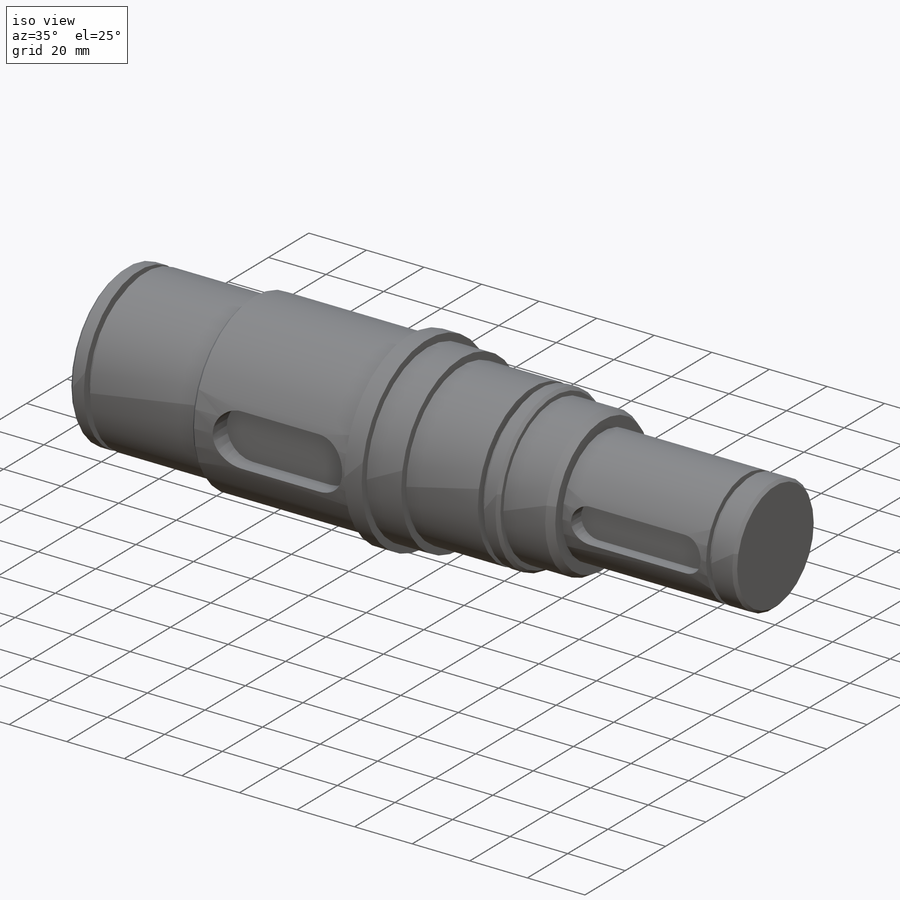
[diagram: iso view]
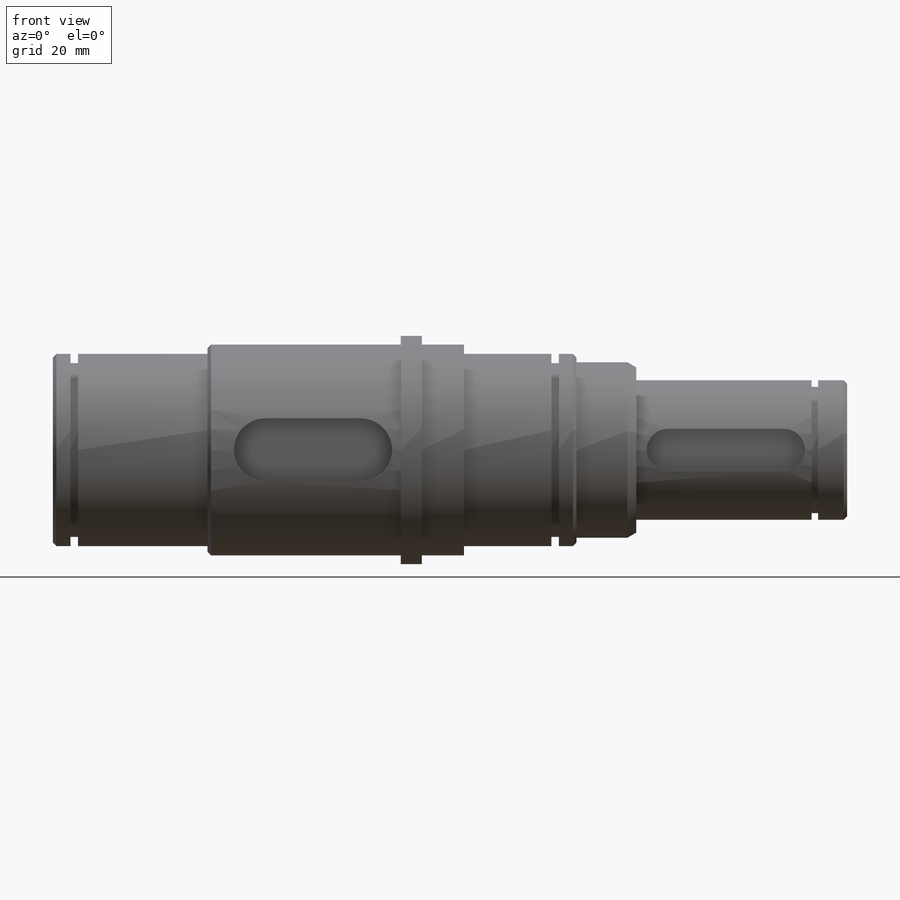
[diagram: front view]
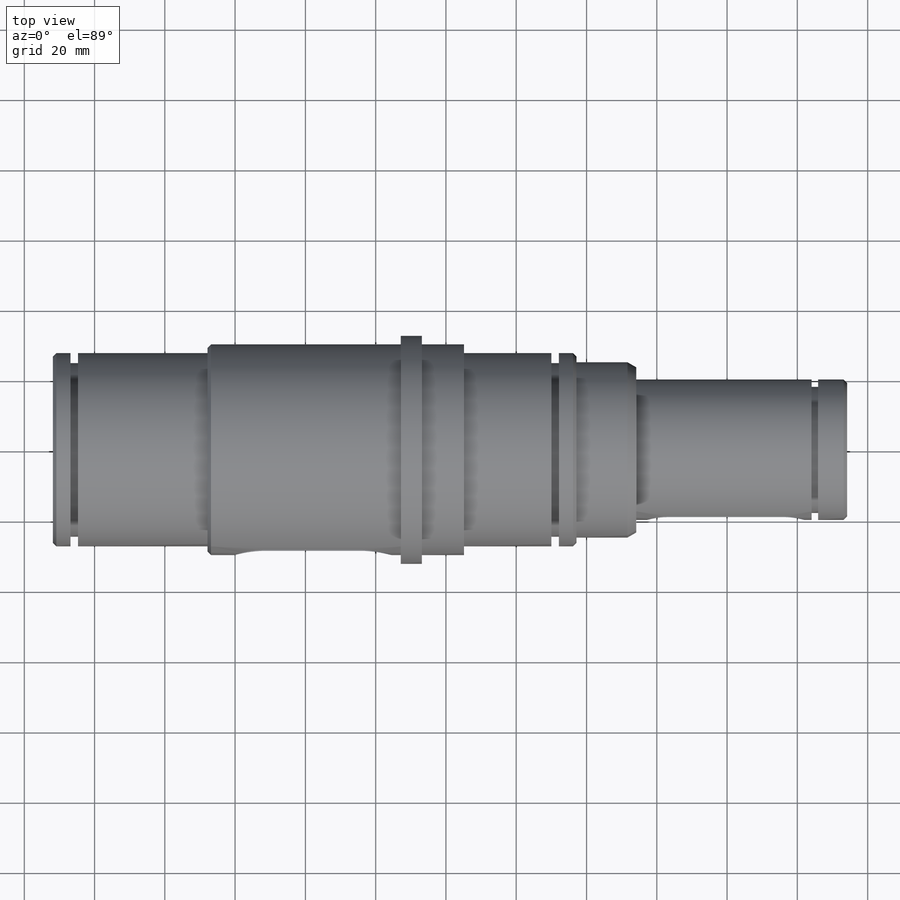
[diagram: top view]
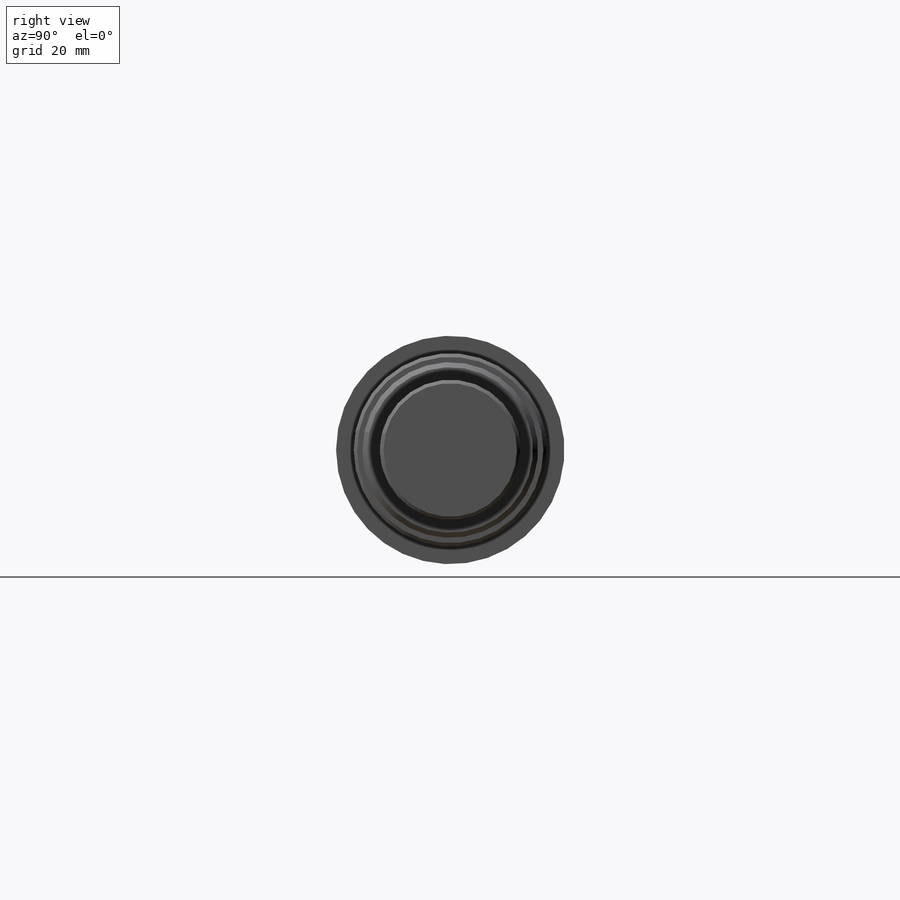
[diagram: right view]
SOLIDWORKS PART (.sldprt)
format: sldprt  version: not decoded by parser v0  size: 434,688 bytes
history: native  units: mm
features: revolve x36, plane x13, sketch x10, material x1, cut_extrude x1, extrude x1 (+9 scaffold rows collapsed)
feature tree (71):
  scaffold x9  (default folders/planes/origin — collapsed)
  material  "1.7225 (42CrMo4)"
  plane  "Ebene vorne"
  plane  "Ebene oben"
  plane  "Ebene rechts"
  sketch  "Skizze1"  dims[c1.D1=27.5mm c1.D2=16.0mm c1.D3=28.0mm c1.D4=30.0mm c1.D5=55.0mm c1.D8=32.5mm c1.D9=6.0mm c1.D10=30.0mm c1.D11=27.5mm c1.D12=12.0mm c1.D13=12.5mm c1.D14=19.5mm c1.D15=114.5mm c2.D5=55.0mm c2.D15=113.5mm c2.D13=113.5mm c2.D12=12.5mm c3.D15=1.0mm c3.D16=25.0mm c3.D18=~1.414214mm c4.D15=17.0mm c4.D16=2.5mm c5.D15=17.0mm c5.D16=2.5mm c5.D18=30.0deg c5.D19=25.0mm c5.D20=20.0mm c5.D21=60.0mm c5.D22=1.0mm c5.D23=45.0deg c5.D24=~394.152402mm c5.D25=19.0mm c5.D26=~168.152402mm c5.D27=26.5mm]
  revolve  "Rotation17"  Angle=360deg
  plane  "Federnut Zahnrad"
  sketch  "Skizze3"  dims[c1.D4=~8.645682mm c1.D1=9.0mm c1.D2=9.0mm c2.D1=2.5mm c2.D2=9.0mm c2.D3=~28.497294mm c2.D4=~28.497294mm c3.D2=~28.497294mm c3.D3=9.0mm c3.D4=~28.497294mm c3.D1=11.5mm c4.D2=~27.166275mm c4.D3=~27.166275mm c5.D2=~30.666275mm c5.D3=~30.666275mm c6.D2=2.5mm c6.D1=45.0mm c6.D3=18.0mm]
  cut_extrude  "Schnitt-Linear austragen1"  Depth=7mm
  plane  "Federnut Riemenscheibe"
  sketch  "Skizze4"  dims[c1.D4=~6.009064mm c1.D1=3.0mm c1.D2=6.0mm c1.D3=33.0mm c2.D4=12.0mm c2.D1=5.0mm]
  sketch  "Skizze5"  dims[D1=2.0mm]
  plane  "Ebene4"
  sketch  "Skizze7"  dims[D1=0.185mm D2=0.185mm D3=18.75mm D4=24.0mm D5=~383.22741mm D6=~385.07741mm]
  plane  "Ebene5"
  sketch  "Skizze9"  dims[D1=0.185mm D2=0.185mm D3=2.0mm]
  plane  "Sicherungsnut Lager"
  plane  "Ebene7"
  plane  "Ebene8"
  sketch  "Skizze14"  dims[D1=0.215mm D2=0.215mm]
  plane  "Ebene9"
  sketch  "Skizze16"  dims[D1=0.215mm D2=0.215mm D3=5.0mm]
  revolve  "CurrentVersion"  [1 undecoded]
  revolve  "EditFunction"  [1 undecoded]
  revolve  "Type"  [1 undecoded]
  revolve  "SubType"  [1 undecoded]
  revolve  "Application"  [1 undecoded]
  revolve  "CurrentVersion"  [1 undecoded]
  revolve  "EditFunction"  [1 undecoded]
  revolve  "Type"  [1 undecoded]
  revolve  "SubType"  [1 undecoded]
  revolve  "STANDARD"  [1 undecoded]
  revolve  "TYPE"  [1 undecoded]
  revolve  "SIZE"  [1 undecoded]
  revolve  "GROOVE_LOCATION"  [1 undecoded]
  extrude  "CimRetRingSettings6.1"  [1 undecoded]
  revolve  "STANDARD"  [1 undecoded]
  revolve  "TYPE"  [1 undecoded]
  revolve  "SIZE"  [1 undecoded]
  revolve  "GROOVE_LOCATION"  Angle=360deg
  plane  "Ebene10"
  sketch  "Skizze18"  dims[D1=0.185mm D2=0.185mm D3=51.75mm]
  revolve  "Application"  [1 undecoded]
  revolve  "CurrentVersion"  [1 undecoded]
  revolve  "EditFunction"  [1 undecoded]
  revolve  "Type"  [1 undecoded]
  revolve  "SubType"  [1 undecoded]
  revolve  "STANDARD"  [1 undecoded]
  revolve  "TYPE"  [1 undecoded]
  revolve  "SIZE"  [1 undecoded]
  revolve  "GROOVE_LOCATION"  Angle=360deg
  plane  "Ebene11"
  sketch  "Skizze20"  dims[D1=0.215mm D2=0.215mm D3=2.15mm D4=27.0mm]
  revolve  "Application"  [1 undecoded]
  revolve  "CurrentVersion"  [1 undecoded]
  revolve  "EditFunction"  [1 undecoded]
  revolve  "Type"  [1 undecoded]
  revolve  "SubType"  [1 undecoded]
  revolve  "STANDARD"  [1 undecoded]
  revolve  "TYPE"  [1 undecoded]
  revolve  "SIZE"  [1 undecoded]
  revolve  "GROOVE_LOCATION"  Angle=360deg
decode coverage: 15 of 48 modeling features carry decoded parameters
note: ~ marks probable driven/reference dimensions
note: 33 parameter values undecoded
summary: no parameter record found for 33 features
note: suppression state not decoded; provenance and decode notes live in map.json
